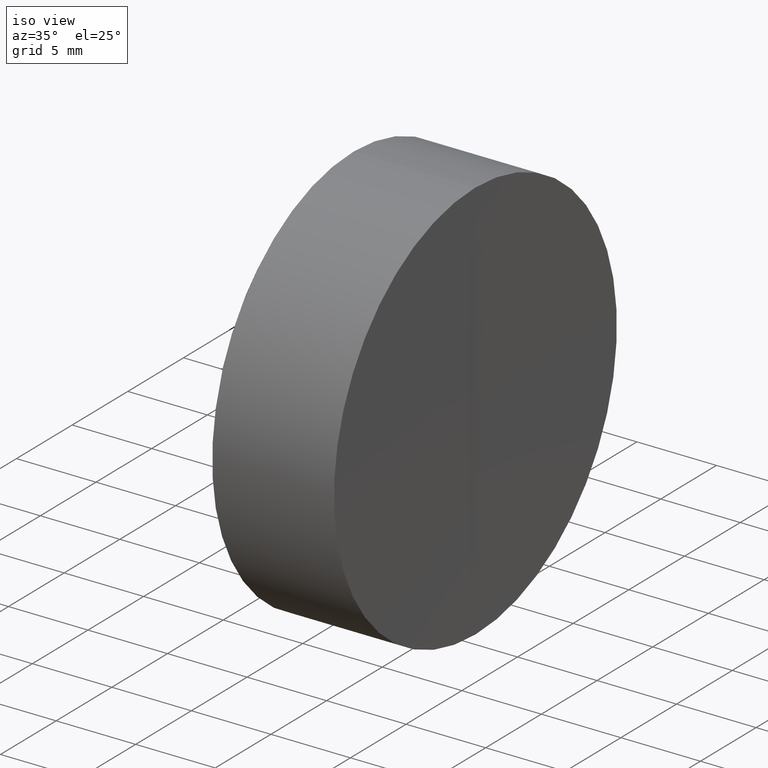
[diagram: clean part render]
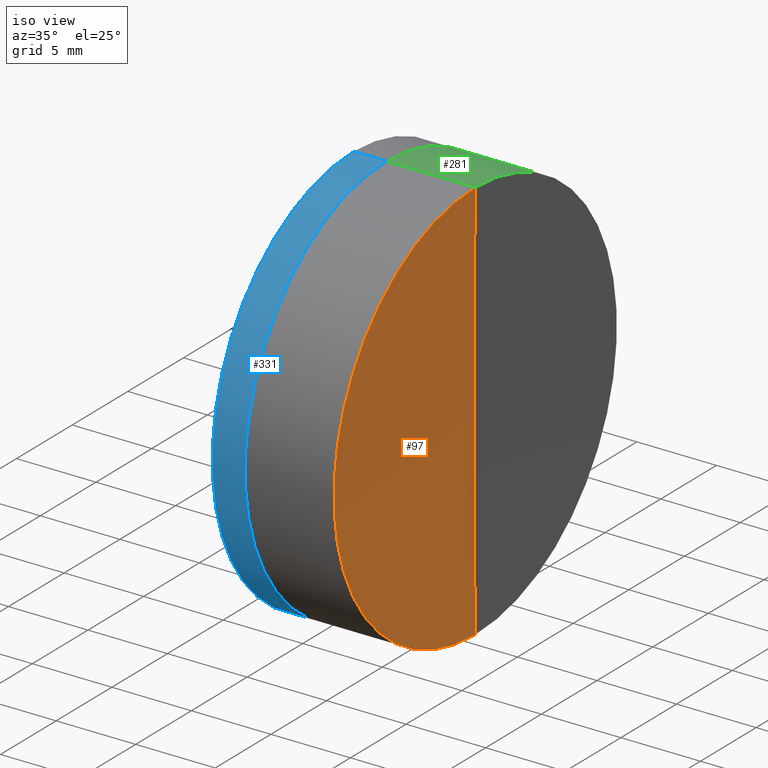
[diagram: same view with three faces highlighted in distinct colors, each labeled with its STEP entity id]
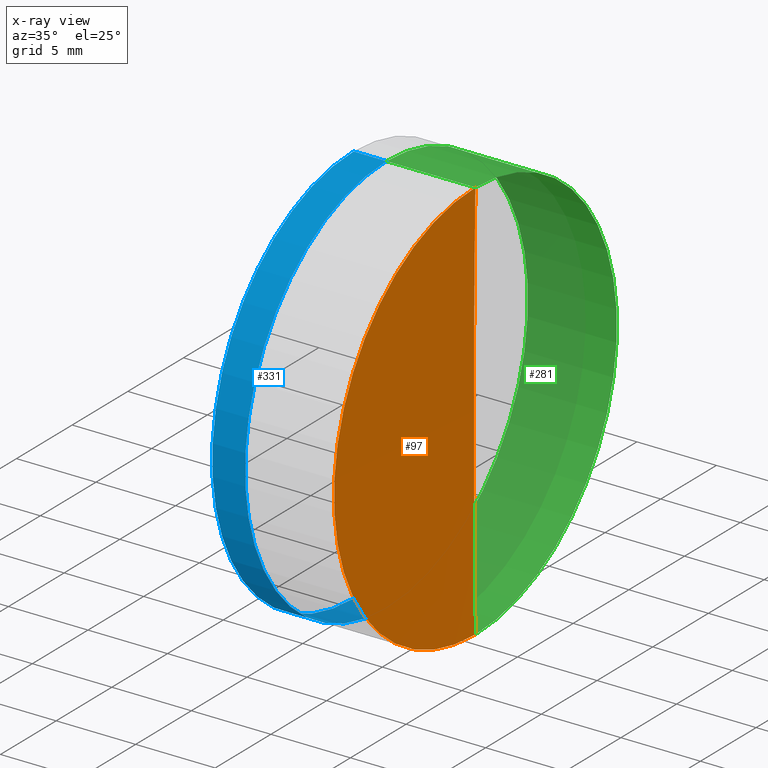
[diagram: x-ray of the same camera — body ghosted, the three highlighted faces saturated]
A machine part, iso view with three faces highlighted in distinct colors.
The next image is the same camera in x-ray (body ghosted, the three faces saturated) — at least one of them is partly hidden behind the body in this view.
Their STEP definitions:

[orange] entity #97 — the highlighted spherical surface has radius 900 mm.
#3 = VERTEX_POINT ( 'NONE', #173 ) ;
#5 = DIRECTION ( 'NONE',  ( 0.0000000000000000000, 0.0000000000000000000, -1.000000000000000000 ) ) ;
#13 = CARTESIAN_POINT ( 'NONE',  ( 42.35364623093715200, 0.0000000000000000000, -12.69999999999743100 ) ) ;
#15 = CARTESIAN_POINT ( 'NONE',  ( 942.2640362142952900, 0.0000000000000000000, 0.0000000000000000000 ) ) ;
#33 = DIRECTION ( 'NONE',  ( 0.0000000000000000000, 1.000000000000000000, -0.0000000000000000000 ) ) ;
#34 = DIRECTION ( 'NONE',  ( 0.0000000000000000000, -1.000000000000000000, -1.224646799147353200E-016 ) ) ;
#46 = EDGE_LOOP ( 'NONE', ( #274, #300, #191 ) ) ;
#62 = DIRECTION ( 'NONE',  ( 0.0000000000000000000, 1.224646799147353500E-016, -1.000000000000000000 ) ) ;
#82 = CARTESIAN_POINT ( 'NONE',  ( 942.2640362142952900, 0.0000000000000000000, 0.0000000000000000000 ) ) ;
#97 = ADVANCED_FACE ( 'NONE', ( #167 ), #296, .F. ) ;
#108 = AXIS2_PLACEMENT_3D ( 'NONE', #82, #124, #5 ) ;
#118 = CIRCLE ( 'NONE', #251, 899.9999999999997700 ) ;
#124 = DIRECTION ( 'NONE',  ( -0.0000000000000000000, -1.000000000000000000, -0.0000000000000000000 ) ) ;
#129 = VERTEX_POINT ( 'NONE', #13 ) ;
#142 = EDGE_CURVE ( 'NONE', #129, #238, #179, .T. ) ;
#159 = AXIS2_PLACEMENT_3D ( 'NONE', #269, #33, #346 ) ;
#160 = CARTESIAN_POINT ( 'NONE',  ( 42.26403621429553000, 0.0000000000000000000, -5.510910596163088600E-014 ) ) ;
#167 = FACE_OUTER_BOUND ( 'NONE', #46, .T. ) ;
#173 = CARTESIAN_POINT ( 'NONE',  ( 42.35364623093715200, -1.555301434916824100E-015, 12.69999999999743100 ) ) ;
#179 = CIRCLE ( 'NONE', #159, 899.9999999999997700 ) ;
#184 = CIRCLE ( 'NONE', #258, 12.69999999999999200 ) ;
#191 = ORIENTED_EDGE ( 'NONE', *, *, #142, .T. ) ;
#205 = DIRECTION ( 'NONE',  ( 0.0000000000000000000, 0.0000000000000000000, 1.000000000000000000 ) ) ;
#210 = EDGE_CURVE ( 'NONE', #129, #3, #184, .T. ) ;
#219 = EDGE_CURVE ( 'NONE', #3, #238, #118, .T. ) ;
#238 = VERTEX_POINT ( 'NONE', #160 ) ;
#251 = AXIS2_PLACEMENT_3D ( 'NONE', #15, #34, #62 ) ;
#258 = AXIS2_PLACEMENT_3D ( 'NONE', #288, #309, #205 ) ;
#269 = CARTESIAN_POINT ( 'NONE',  ( 942.2640362142952900, 0.0000000000000000000, 0.0000000000000000000 ) ) ;
#274 = ORIENTED_EDGE ( 'NONE', *, *, #219, .F. ) ;
#288 = CARTESIAN_POINT ( 'NONE',  ( 42.35364623093713000, 0.0000000000000000000, 0.0000000000000000000 ) ) ;
#296 = SPHERICAL_SURFACE ( 'NONE', #108, 899.9999999999997700 ) ;
#300 = ORIENTED_EDGE ( 'NONE', *, *, #210, .F. ) ;
#309 = DIRECTION ( 'NONE',  ( -1.000000000000000000, -0.0000000000000000000, -0.0000000000000000000 ) ) ;
#346 = DIRECTION ( 'NONE',  ( 0.0000000000000000000, 0.0000000000000000000, 1.000000000000000000 ) ) ;

[blue] entity #331 — the highlighted cylindrical surface (partial cylindrical patch) has radius 12.7 mm, axis along (-1, -0, -0).
#9 = CARTESIAN_POINT ( 'NONE',  ( 36.76664125472041200, 1.555301434917138400E-015, -12.69999999999999900 ) ) ;
#11 = DIRECTION ( 'NONE',  ( 0.0000000000000000000, 0.0000000000000000000, 1.000000000000000000 ) ) ;
#20 = VERTEX_POINT ( 'NONE', #9 ) ;
#25 = CYLINDRICAL_SURFACE ( 'NONE', #53, 12.69999999999999900 ) ;
#49 = ORIENTED_EDGE ( 'NONE', *, *, #247, .T. ) ;
#50 = CARTESIAN_POINT ( 'NONE',  ( 34.70027742184829100, 0.0000000000000000000, 12.69999999999997600 ) ) ;
#51 = EDGE_CURVE ( 'NONE', #292, #316, #347, .T. ) ;
#53 = AXIS2_PLACEMENT_3D ( 'NONE', #83, #195, #183 ) ;
#80 = ORIENTED_EDGE ( 'NONE', *, *, #264, .F. ) ;
#83 = CARTESIAN_POINT ( 'NONE',  ( -0.8160621761658039000, 0.0000000000000000000, 0.0000000000000000000 ) ) ;
#86 = EDGE_CURVE ( 'NONE', #20, #196, #161, .T. ) ;
#90 = ORIENTED_EDGE ( 'NONE', *, *, #86, .F. ) ;
#91 = CARTESIAN_POINT ( 'NONE',  ( -0.8160621761658039000, 0.0000000000000000000, 12.69999999999999900 ) ) ;
#101 = VECTOR ( 'NONE', #127, 1000.000000000000000 ) ;
#112 = ORIENTED_EDGE ( 'NONE', *, *, #51, .T. ) ;
#116 = CARTESIAN_POINT ( 'NONE',  ( 34.70027742184829100, 1.555301434917135900E-015, -12.69999999999997600 ) ) ;
#125 = DIRECTION ( 'NONE',  ( -1.000000000000000000, -0.0000000000000000000, -0.0000000000000000000 ) ) ;
#127 = DIRECTION ( 'NONE',  ( -1.000000000000000000, -0.0000000000000000000, -0.0000000000000000000 ) ) ;
#150 = DIRECTION ( 'NONE',  ( -1.000000000000000000, -0.0000000000000000000, -0.0000000000000000000 ) ) ;
#158 = DIRECTION ( 'NONE',  ( -1.000000000000000000, -0.0000000000000000000, -0.0000000000000000000 ) ) ;
#161 = LINE ( 'NONE', #223, #101 ) ;
#168 = EDGE_LOOP ( 'NONE', ( #90, #49, #112, #80 ) ) ;
#175 = CIRCLE ( 'NONE', #220, 12.69999999999999900 ) ;
#183 = DIRECTION ( 'NONE',  ( 0.0000000000000000000, 0.0000000000000000000, 1.000000000000000000 ) ) ;
#187 = CARTESIAN_POINT ( 'NONE',  ( 34.70027742184828400, 0.0000000000000000000, 0.0000000000000000000 ) ) ;
#193 = CARTESIAN_POINT ( 'NONE',  ( 36.76664125472041200, 0.0000000000000000000, 0.0000000000000000000 ) ) ;
#195 = DIRECTION ( 'NONE',  ( -1.000000000000000000, -0.0000000000000000000, -0.0000000000000000000 ) ) ;
#196 = VERTEX_POINT ( 'NONE', #116 ) ;
#202 = CIRCLE ( 'NONE', #241, 12.69999999999999900 ) ;
#220 = AXIS2_PLACEMENT_3D ( 'NONE', #193, #125, #11 ) ;
#223 = CARTESIAN_POINT ( 'NONE',  ( -0.8160621761658039000, 1.555301434917138400E-015, -12.69999999999999900 ) ) ;
#231 = CARTESIAN_POINT ( 'NONE',  ( 36.76664125472041200, 0.0000000000000000000, 12.69999999999999900 ) ) ;
#241 = AXIS2_PLACEMENT_3D ( 'NONE', #187, #158, #244 ) ;
#244 = DIRECTION ( 'NONE',  ( 0.0000000000000000000, 0.0000000000000000000, 1.000000000000000000 ) ) ;
#247 = EDGE_CURVE ( 'NONE', #20, #292, #175, .T. ) ;
#259 = FACE_OUTER_BOUND ( 'NONE', #168, .T. ) ;
#264 = EDGE_CURVE ( 'NONE', #196, #316, #202, .T. ) ;
#280 = VECTOR ( 'NONE', #150, 1000.000000000000000 ) ;
#292 = VERTEX_POINT ( 'NONE', #231 ) ;
#316 = VERTEX_POINT ( 'NONE', #50 ) ;
#331 = ADVANCED_FACE ( 'NONE', ( #259 ), #25, .T. ) ;
#347 = LINE ( 'NONE', #91, #280 ) ;

[green] entity #281 — the highlighted cylindrical surface (partial cylindrical patch) has radius 12.7 mm, axis along (-1, -0, -0).
#3 = VERTEX_POINT ( 'NONE', #173 ) ;
#6 = FACE_OUTER_BOUND ( 'NONE', #229, .T. ) ;
#13 = CARTESIAN_POINT ( 'NONE',  ( 42.35364623093715200, 0.0000000000000000000, -12.69999999999743100 ) ) ;
#19 = LINE ( 'NONE', #120, #314 ) ;
#24 = AXIS2_PLACEMENT_3D ( 'NONE', #324, #153, #250 ) ;
#31 = ORIENTED_EDGE ( 'NONE', *, *, #117, .F. ) ;
#32 = EDGE_CURVE ( 'NONE', #310, #103, #217, .T. ) ;
#40 = CIRCLE ( 'NONE', #190, 12.69999999999999200 ) ;
#47 = DIRECTION ( 'NONE',  ( 0.0000000000000000000, 0.0000000000000000000, 1.000000000000000000 ) ) ;
#61 = CYLINDRICAL_SURFACE ( 'NONE', #321, 12.69999999999999200 ) ;
#77 = LINE ( 'NONE', #327, #230 ) ;
#103 = VERTEX_POINT ( 'NONE', #306 ) ;
#109 = CARTESIAN_POINT ( 'NONE',  ( -0.5519199926577972300, 0.0000000000000000000, 0.0000000000000000000 ) ) ;
#117 = EDGE_CURVE ( 'NONE', #3, #310, #19, .T. ) ;
#120 = CARTESIAN_POINT ( 'NONE',  ( -0.5519199926577972300, 0.0000000000000000000, 12.69999999999999200 ) ) ;
#129 = VERTEX_POINT ( 'NONE', #13 ) ;
#132 = DIRECTION ( 'NONE',  ( 0.0000000000000000000, 0.0000000000000000000, 1.000000000000000000 ) ) ;
#153 = DIRECTION ( 'NONE',  ( -1.000000000000000000, -0.0000000000000000000, -0.0000000000000000000 ) ) ;
#155 = ORIENTED_EDGE ( 'NONE', *, *, #221, .T. ) ;
#173 = CARTESIAN_POINT ( 'NONE',  ( 42.35364623093715200, -1.555301434916824100E-015, 12.69999999999743100 ) ) ;
#190 = AXIS2_PLACEMENT_3D ( 'NONE', #266, #235, #47 ) ;
#199 = ORIENTED_EDGE ( 'NONE', *, *, #32, .F. ) ;
#212 = DIRECTION ( 'NONE',  ( -1.000000000000000000, -0.0000000000000000000, -0.0000000000000000000 ) ) ;
#217 = CIRCLE ( 'NONE', #24, 12.69999999999999400 ) ;
#221 = EDGE_CURVE ( 'NONE', #129, #103, #77, .T. ) ;
#229 = EDGE_LOOP ( 'NONE', ( #290, #155, #199, #31 ) ) ;
#230 = VECTOR ( 'NONE', #282, 1000.000000000000000 ) ;
#235 = DIRECTION ( 'NONE',  ( -1.000000000000000000, -0.0000000000000000000, -0.0000000000000000000 ) ) ;
#250 = DIRECTION ( 'NONE',  ( 0.0000000000000000000, 0.0000000000000000000, 1.000000000000000000 ) ) ;
#255 = CARTESIAN_POINT ( 'NONE',  ( 36.76664125472041200, -1.555301434917138000E-015, 12.69999999999999400 ) ) ;
#266 = CARTESIAN_POINT ( 'NONE',  ( 42.35364623093713000, 0.0000000000000000000, 0.0000000000000000000 ) ) ;
#281 = ADVANCED_FACE ( 'NONE', ( #6 ), #61, .T. ) ;
#282 = DIRECTION ( 'NONE',  ( -1.000000000000000000, -0.0000000000000000000, -0.0000000000000000000 ) ) ;
#290 = ORIENTED_EDGE ( 'NONE', *, *, #325, .T. ) ;
#306 = CARTESIAN_POINT ( 'NONE',  ( 36.76664125472041200, 0.0000000000000000000, -12.69999999999999400 ) ) ;
#310 = VERTEX_POINT ( 'NONE', #255 ) ;
#314 = VECTOR ( 'NONE', #212, 1000.000000000000000 ) ;
#319 = DIRECTION ( 'NONE',  ( -1.000000000000000000, -0.0000000000000000000, -0.0000000000000000000 ) ) ;
#321 = AXIS2_PLACEMENT_3D ( 'NONE', #109, #319, #132 ) ;
#324 = CARTESIAN_POINT ( 'NONE',  ( 36.76664125472041200, 0.0000000000000000000, 0.0000000000000000000 ) ) ;
#325 = EDGE_CURVE ( 'NONE', #3, #129, #40, .T. ) ;
#327 = CARTESIAN_POINT ( 'NONE',  ( -0.5519199926577972300, 1.555301434917137800E-015, -12.69999999999999200 ) ) ;